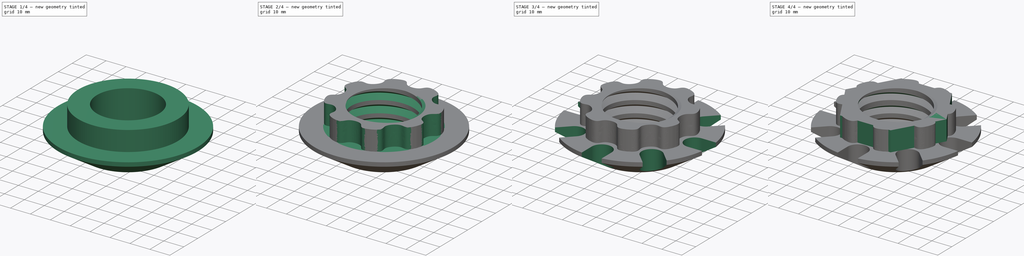
[diagram: build sequence overview — one tinted view per stage of 4, left to right]
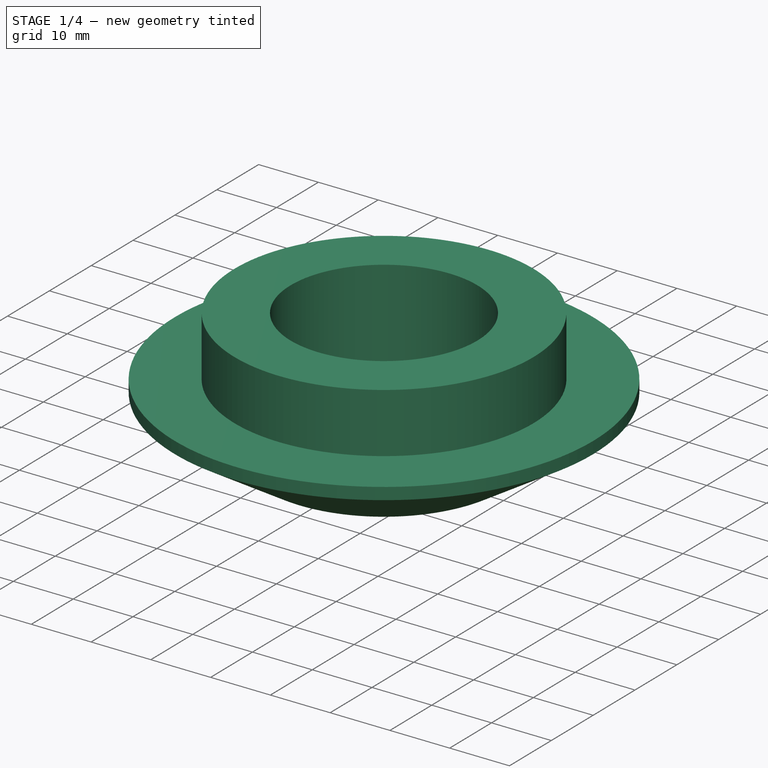
[diagram: stage 1 of 4 — iso view after this stage's code; geometry added in this stage tinted green]
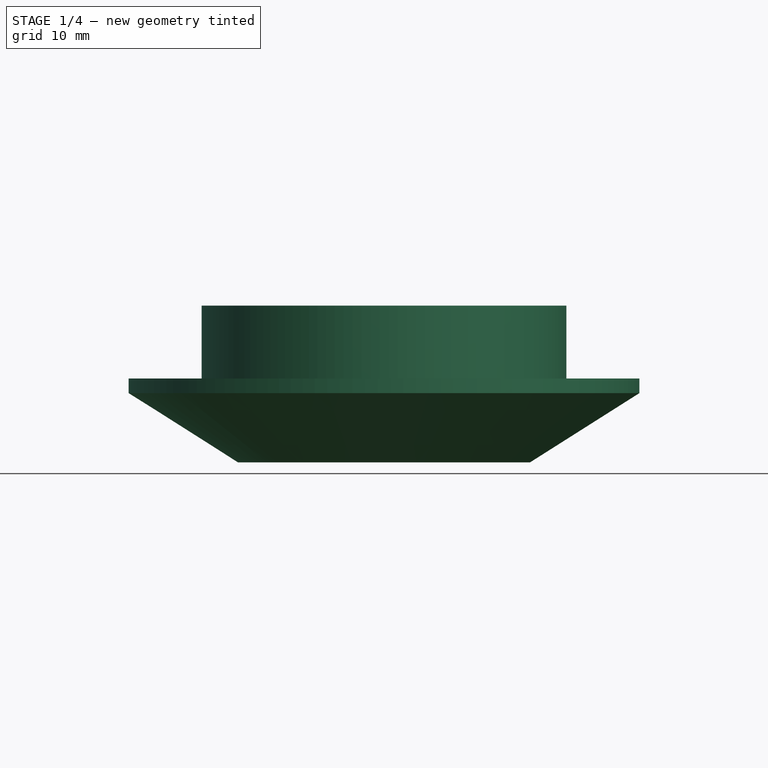
[diagram: stage 1 of 4 — front view after this stage's code; geometry added in this stage tinted green]
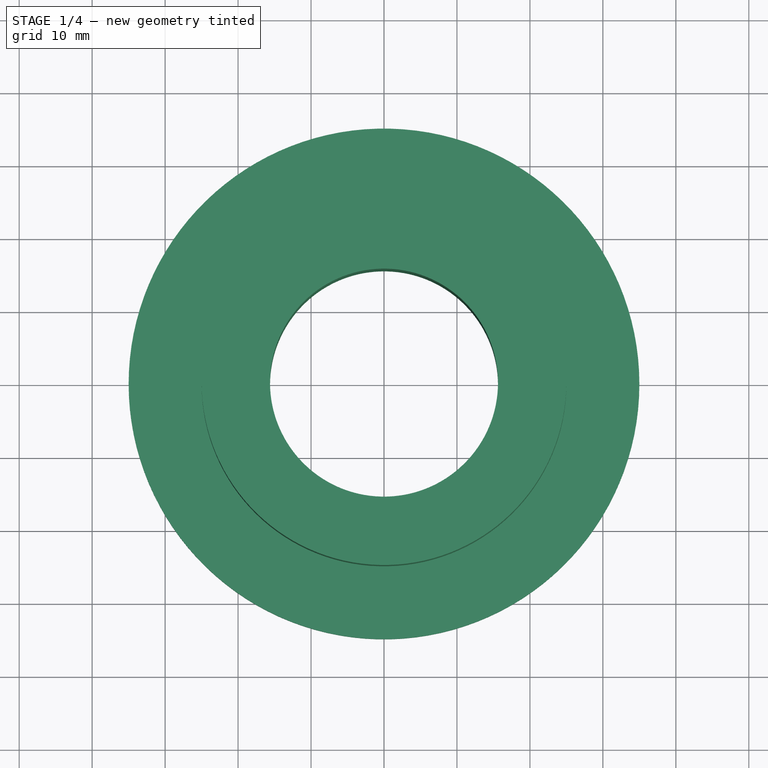
[diagram: stage 1 of 4 — top view after this stage's code; geometry added in this stage tinted green]
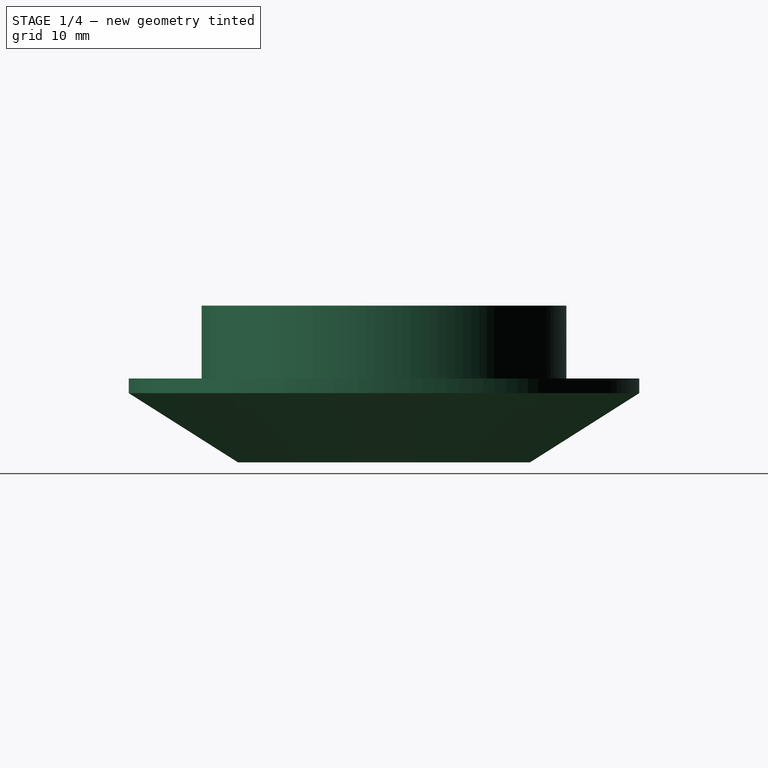
[diagram: stage 1 of 4 — right view after this stage's code; geometry added in this stage tinted green]
FCSTD DOCUMENT  (FreeCAD 0.20R27319 (Git))
Label: Filament Holder Nut
License: All rights reserved
LicenseURL: http://en.wikipedia.org/wiki/All_rights_reserved
objects: Sketcher::SketchObject×9, PartDesign::Pocket×4, PartDesign::Pad×2, PartDesign::SubtractiveHelix×2, PartDesign::Body×2, PartDesign::PolarPattern×2, PartDesign::Revolution×1
note: 31 computed .brp shape members not serialized (recipe doc carries the construction recipe); baked Part::Feature solids carry a one-line shape summary decoded from their .brp

FEATURE [PartDesign::Body] Body001  label="Test Nut"
  Group = -> [Sketch003,Pad,Sketch004,Pocket001,Sketch005,SubtractiveHelix]
  Origin = -> Origin001
  Tip = -> SubtractiveHelix
FEATURE [Sketcher::SketchObject] Sketch006  label="Grip Body Profile"
  FullyConstrained = true
  MapMode = 5
  Support = -> [XY_Plane002]
  sketch-geometry (1):
    g0: Circle CenterX=0 CenterY=0 CenterZ=0 NormalX=0 NormalY=0 NormalZ=1 AngleXU=0 Radius=25
  constraints (2):
    c: Coincident(g0,g-1)
    c: Diameter(g0) = 50
FEATURE [Sketcher::SketchObject] Sketch007  label="Centre Hole OUtline"
  FullyConstrained = true
  MapMode = 5
  Placement = pos=(0,0,10) rot=(0,0,1;0rad)
  sketch-geometry (1):
    g0: Circle CenterX=0 CenterY=0 CenterZ=0 NormalX=0 NormalY=0 NormalZ=1 AngleXU=0 Radius=15.625
  constraints (2):
    c: Coincident(g0,g-1)
    c: Diameter(g0) = 31.25
FEATURE [Sketcher::SketchObject] Sketch009  label="Body Profile (Nut)"
  FullyConstrained = true
  MapMode = 5
  Placement = pos=(0,0,0) rot=(1,0,0;1.5708rad)
  Support = -> [XZ_Plane002]
  sketch-geometry (5):
    g0: LineSegment StartX=0 StartY=0 StartZ=0 EndX=35 EndY=0 EndZ=0
    g1: LineSegment StartX=20 StartY=-11.5 StartZ=0 EndX=0 EndY=-11.5 EndZ=0
    g2: LineSegment StartX=0 StartY=-11.5 StartZ=0 EndX=0 EndY=0 EndZ=0
    g3: LineSegment StartX=35 StartY=0 StartZ=0 EndX=35 EndY=-2 EndZ=0
    g4: LineSegment StartX=20 StartY=-11.5 StartZ=0 EndX=35 EndY=-2 EndZ=0
  constraints (14):
    c: Coincident(g-1,g0)
    c: PointOnObject(g0,g-1)
    c: Horizontal(g1)
    c: Coincident(g1,g2)
    c: Coincident(g2,g0)
    c: Vertical(g2)
    c: Distance(g2) = 11.5
    c: Distance(g1) = 20
    c: Distance(g0) = 35
    c: Coincident(g0,g3)
    c: Vertical(g3)
    c: Coincident(g4,g1)
    c: Coincident(g4,g3)
    c: Distance(g3) = 2
FEATURE [Sketcher::SketchObject] Sketch008  label="Thread Profile (Nut)001"
  ExternalGeometry = -> [Sketch007,Sketch009]
  FullyConstrained = true
  MapMode = 5
  Placement = pos=(0,0,0) rot=(1,0,0;1.5708rad)
  Support = -> [XZ_Plane002]
  sketch-geometry (3):
    g0: LineSegment StartX=15.625 StartY=-11.5 StartZ=0 EndX=15.625 EndY=-15.5 EndZ=0
    g1: LineSegment StartX=15.625 StartY=-15.5 StartZ=0 EndX=18.625 EndY=-13.5 EndZ=0
    g2: LineSegment StartX=18.625 StartY=-13.5 StartZ=0 EndX=15.625 EndY=-11.5 EndZ=0
  constraints (10):
    c: Vertical(g0)
    c: Coincident(g0,g1)
    c: Coincident(g1,g2)
    c: Coincident(g2,g0)
    c: Distance(g0) = 4
    c: DistanceX(g0,g1) = 3
    c: Equal(g2,g1)
    c: Vertical(g0,g-3)
    c: DistanceX(g-1,g0) = 15.625
    c: Horizontal(g0,g-4)
FEATURE [PartDesign::Revolution] Revolution001  label="Body (Nut)"
  Angle = 360
  Axis = (0,-2e-16,1)
  Base = (0,0,0)
  Placement = pos=(0,0,0) rot=(1,0,0;1.5708rad)
  Profile = -> Sketch009
  ReferenceAxis = -> Sketch009 [V_Axis]
FEATURE [PartDesign::Pad] Pad001  label="Grip Body"
  BaseFeature = -> Revolution001
  Direction = (0,0,1)
  Length = 10
  Length2 = 10
  Placement = pos=(0,0,0) rot=(1,0,0;1.5708rad)
  Profile = -> Sketch006
  ReferenceAxis = -> Sketch006 [N_Axis]
  Type = 0
FEATURE [PartDesign::Pocket] Pocket002  label="Centre Hole"
  BaseFeature = -> Pad001
  Direction = (0,0,-1)
  Length = 5
  Length2 = 5
  Placement = pos=(0,0,0) rot=(1,0,0;1.5708rad)
  Profile = -> Sketch007
  ReferenceAxis = -> Sketch007 [N_Axis]
  Type = 1
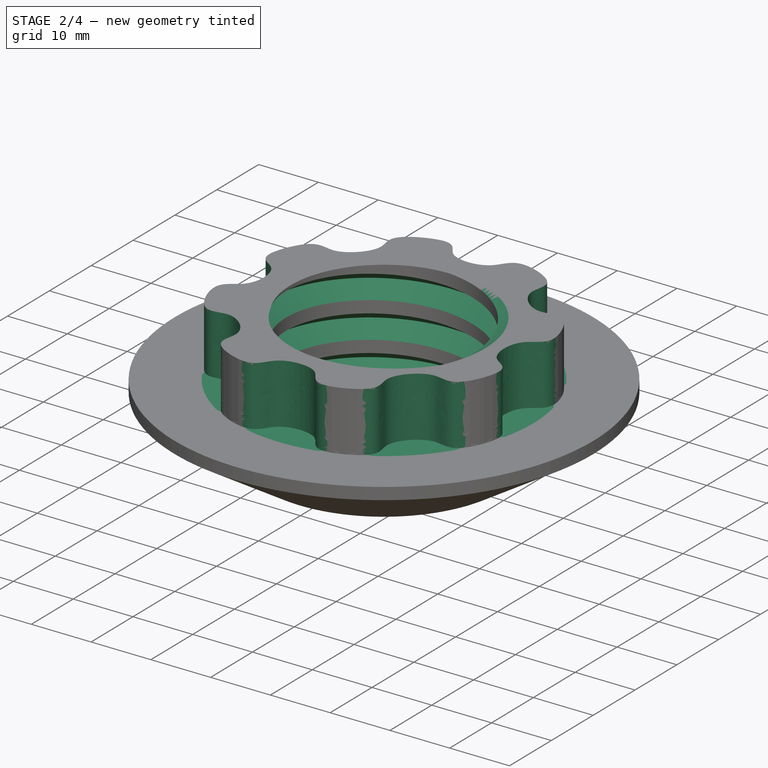
[diagram: stage 2 of 4 — iso view after this stage's code; geometry added in this stage tinted green]
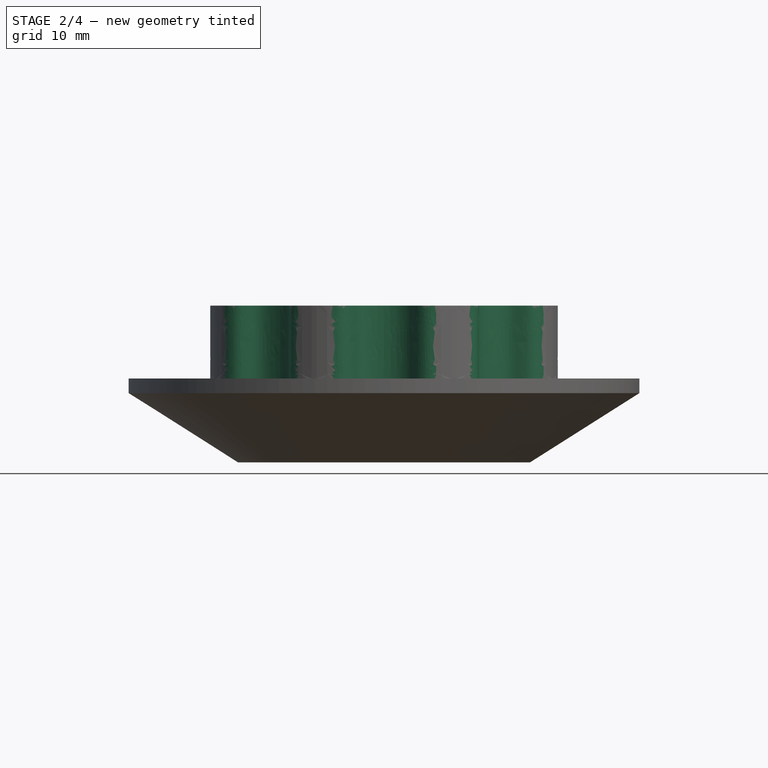
[diagram: stage 2 of 4 — front view after this stage's code; geometry added in this stage tinted green]
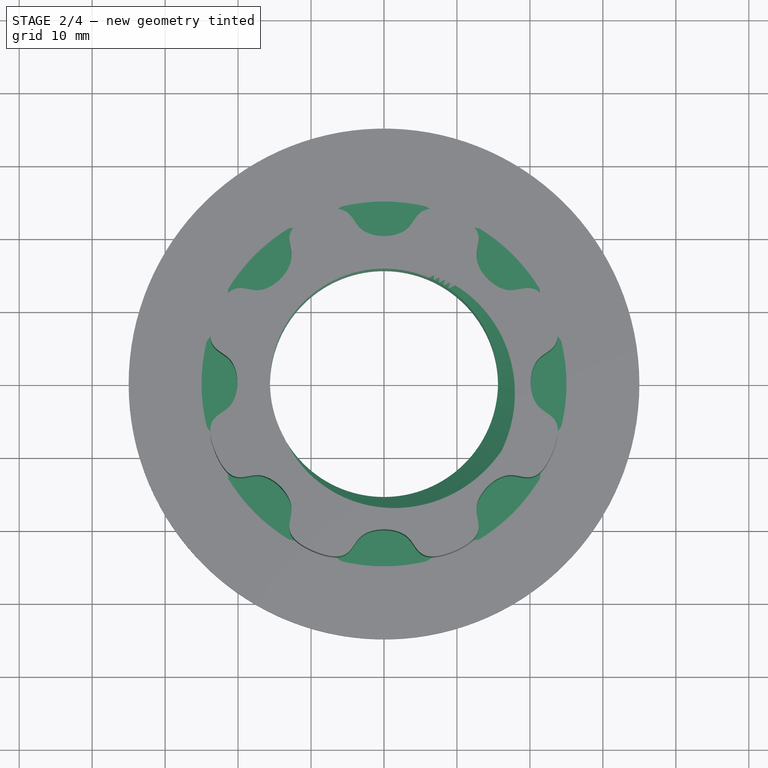
[diagram: stage 2 of 4 — top view after this stage's code; geometry added in this stage tinted green]
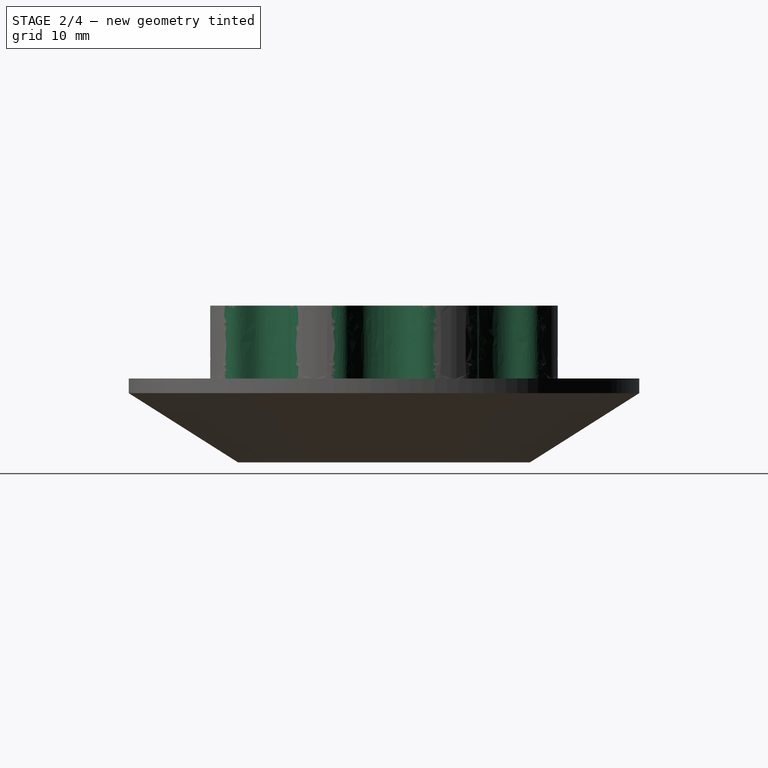
[diagram: stage 2 of 4 — right view after this stage's code; geometry added in this stage tinted green]
FEATURE [Sketcher::SketchObject] Sketch011  label="Grip Cutout Profile"
  ExternalGeometry = -> [Pocket002]
  FullyConstrained = false
  MapMode = 5
  Placement = pos=(0,2.2e-15,10) rot=(0,0,1;3.14159rad)
  Support = -> [Pocket002]
  sketch-geometry (12):
    g0: ArcOfCircle CenterX=0 CenterY=20.7263 CenterZ=0 NormalX=0 NormalY=0 NormalZ=1 AngleXU=0 Radius=9.5409 StartAngle=0.267118 EndAngle=2.87447
    g1-g6: Circle x6 (B-spline internal-alignment scaffolding for g7; pole/knot coordinates omitted)
    g7: BSplineCurve PolesCount=6 KnotsCount=4 Degree=3 IsPeriodic=0
    g8-g11: GeomPoint x4 (B-spline internal-alignment scaffolding for g7; pole/knot coordinates omitted)
  constraints (11):
    c: PointOnObject(g0,g-2)
    c: PointOnObject(g0,g-3)
    c: PointOnObject(g0,g-3)
    c: Coincident(g7,g0)
    c: Weight(g1) = 1
    c: Equal(g1, g2-g6) x5
    c: Coincident(g7,g0)
    c: InternalAlignment(g1-g6 -> g7) x6
    c: InternalAlignment(g8-g11 -> g7) x4
    c: Symmetric(g3,g4,g-2)
    c: Symmetric(g2,g5,g-2)
FEATURE [PartDesign::Pocket] Pocket003  label="Grip Cutout"
  BaseFeature = -> Pocket002
  Direction = (0,-2e-16,-1)
  Length = 10
  Length2 = 5
  Placement = pos=(0,0,0) rot=(1,0,0;1.5708rad)
  Profile = -> Sketch011
  ReferenceAxis = -> Sketch011 [N_Axis]
  Type = 0
FEATURE [PartDesign::PolarPattern] PolarPattern002  label="Grip Cutout Polar"
  Angle = 360
  Axis = -> Sketch011 [N_Axis]
  BaseFeature = -> Pocket003
  Occurrences = 8
  Originals = -> [Pocket003]
  Overlap = 0
  Placement = pos=(0,0,0) rot=(1,0,0;1.5708rad)
FEATURE [PartDesign::SubtractiveHelix] SubtractiveHelix001  label="Thread (Nut)001"
  Angle = 0
  Axis = (0,-2e-16,1)
  Base = (0,0,0)
  BaseFeature = -> PolarPattern002
  Growth = 0
  HasBeenEdited = true
  Height = 60
  LeftHanded = false
  Mode = 0
  Outside = false
  Pitch = 6
  Placement = pos=(0,0,0) rot=(1,0,0;1.5708rad)
  Profile = -> Sketch008
  ReferenceAxis = -> Sketch008 [V_Axis]
  Turns = 10
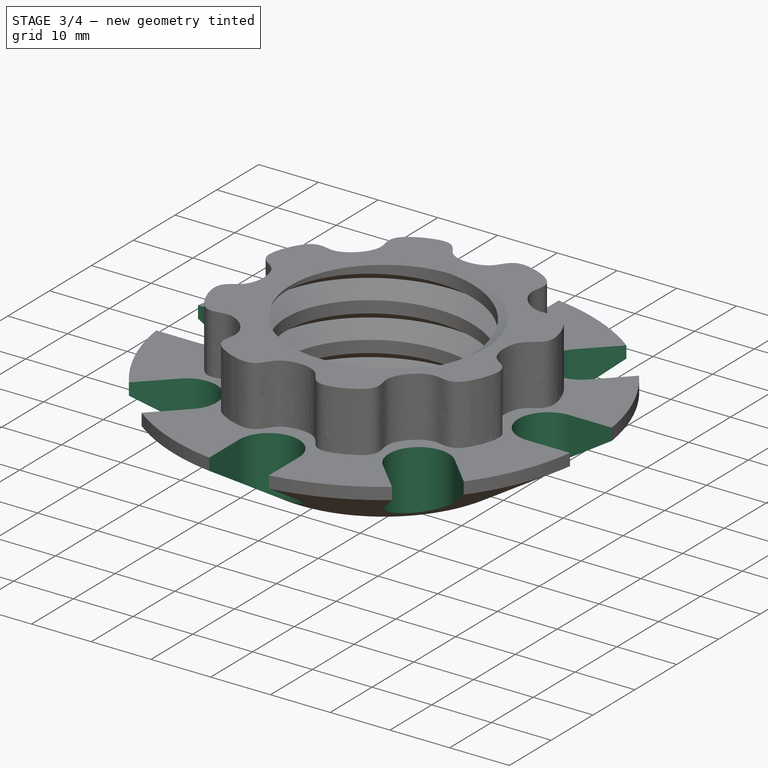
[diagram: stage 3 of 4 — iso view after this stage's code; geometry added in this stage tinted green]
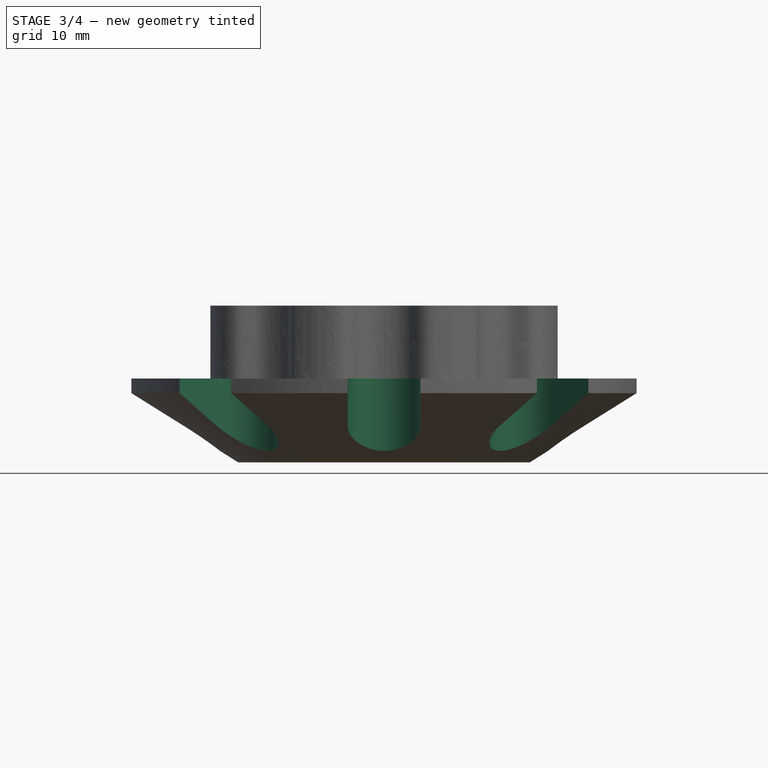
[diagram: stage 3 of 4 — front view after this stage's code; geometry added in this stage tinted green]
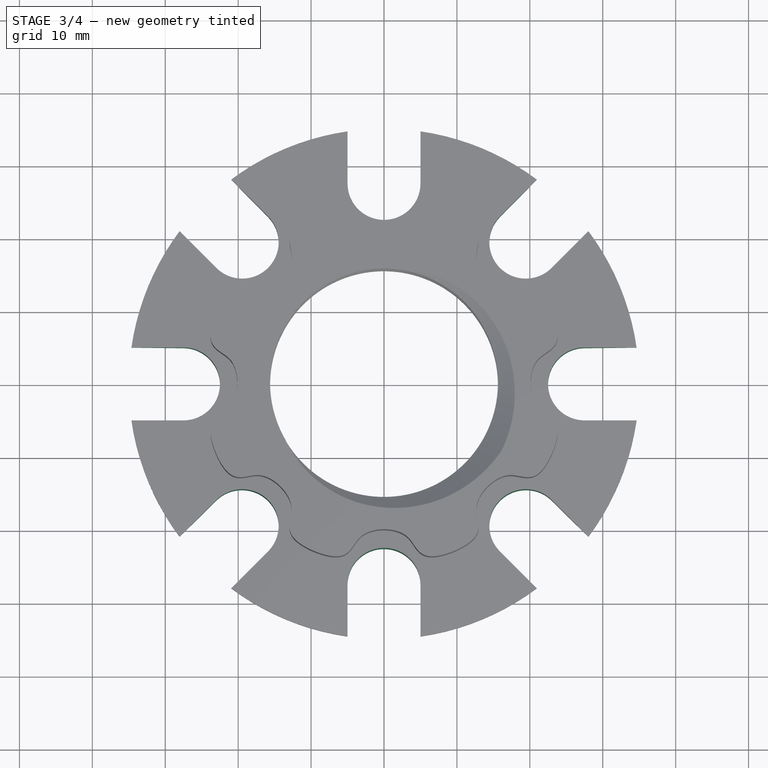
[diagram: stage 3 of 4 — top view after this stage's code; geometry added in this stage tinted green]
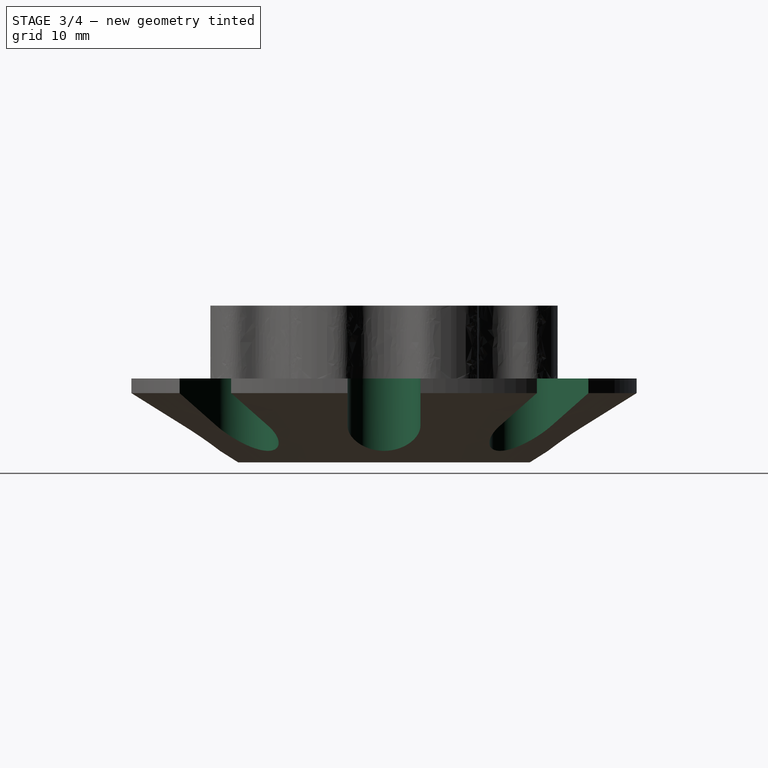
[diagram: stage 3 of 4 — right view after this stage's code; geometry added in this stage tinted green]
FEATURE [Sketcher::SketchObject] Sketch012
  ExternalGeometry = -> [Revolution001]
  FullyConstrained = false
  MapMode = 5
  Placement = pos=(0,0,0) rot=(0,0,1;3.14159rad)
  Support = -> [SubtractiveHelix001]
  sketch-geometry (5):
    g0: LineSegment StartX=-5 StartY=41.518 StartZ=0 EndX=5 EndY=41.518 EndZ=0
    g1: LineSegment StartX=5 StartY=41.518 StartZ=0 EndX=5 EndY=27.5 EndZ=0
    g2: ArcOfCircle CenterX=0 CenterY=27.5 CenterZ=0 NormalX=0 NormalY=0 NormalZ=1 AngleXU=0 Radius=5 StartAngle=3.14159 EndAngle=6.28319
    g3: LineSegment StartX=-5 StartY=27.5 StartZ=0 EndX=-5 EndY=41.518 EndZ=0
    g4: GeomPoint X=0 Y=35 Z=0
  constraints (12):
    c: Coincident(g0,g1)
    c: Vertical(g1)
    c: Tangent(g1,g2) = 1.5708
    c: Coincident(g2,g3)
    c: Coincident(g3,g0)
    c: Vertical(g3)
    c: PointOnObject(g2,g-2)
    c: Symmetric(g0,g0,g-2)
    c: Diameter(g2) = 10
    c: PointOnObject(g4,g-3)
    c: PointOnObject(g4,g-2)
    c: DistanceY(g2,g4) = 7.5
FEATURE [PartDesign::Pocket] Pocket004
  BaseFeature = -> SubtractiveHelix001
  Direction = (0,-4e-16,-1)
  Length = 5
  Length2 = 5
  Placement = pos=(0,0,0) rot=(1,0,0;1.5708rad)
  Profile = -> Sketch012
  ReferenceAxis = -> Sketch012 [N_Axis]
  Type = 1
FEATURE [PartDesign::PolarPattern] PolarPattern003
  Angle = 360
  Axis = -> Sketch012 [N_Axis]
  BaseFeature = -> Pocket004
  Occurrences = 8
  Originals = -> [Pocket004]
  Overlap = 0
  Placement = pos=(0,0,0) rot=(1,0,0;1.5708rad)
FEATURE [PartDesign::Body] Body002  label="Conical Nut"
  Group = -> [Revolution001,Sketch012,Pad001,Sketch009,Sketch006,Sketch007,Pocket002,Pocket003,PolarPattern002,Sketch011,Sketch008,SubtractiveHelix001,Pocket004,PolarPattern003]
  Origin = -> Origin002
  Tip = -> PolarPattern003
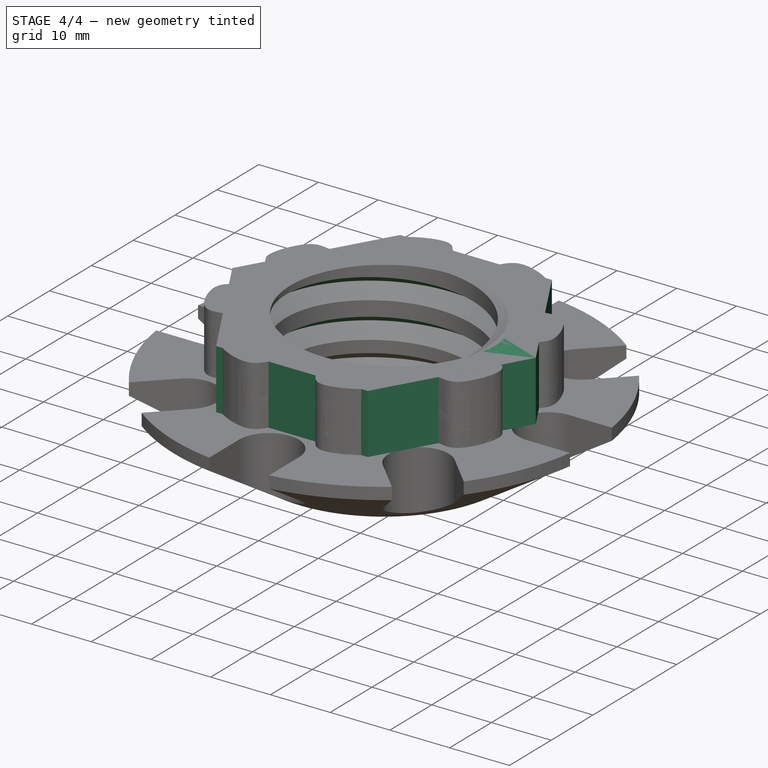
[diagram: stage 4 of 4 — iso view after this stage's code; geometry added in this stage tinted green]
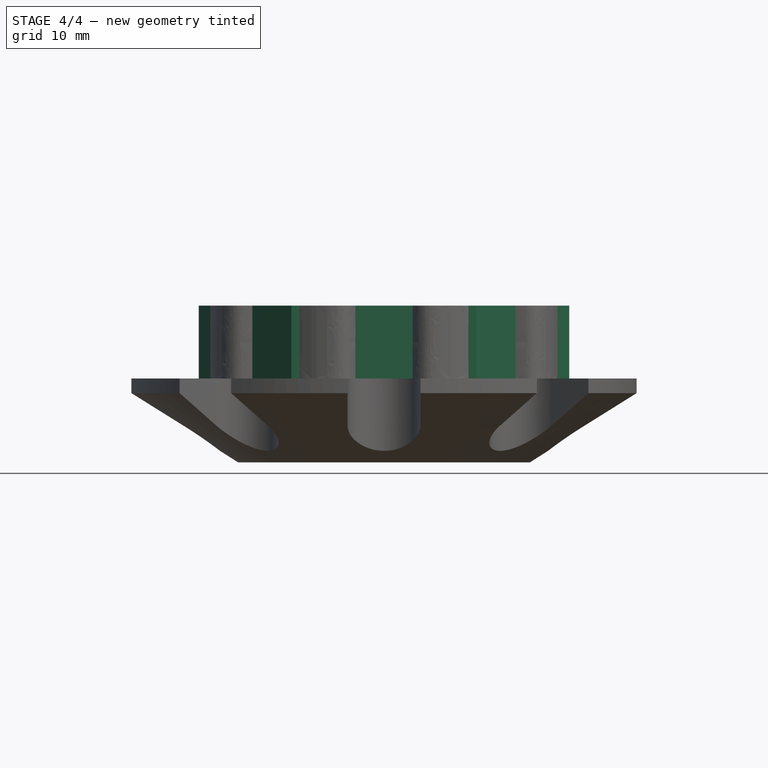
[diagram: stage 4 of 4 — front view after this stage's code; geometry added in this stage tinted green]
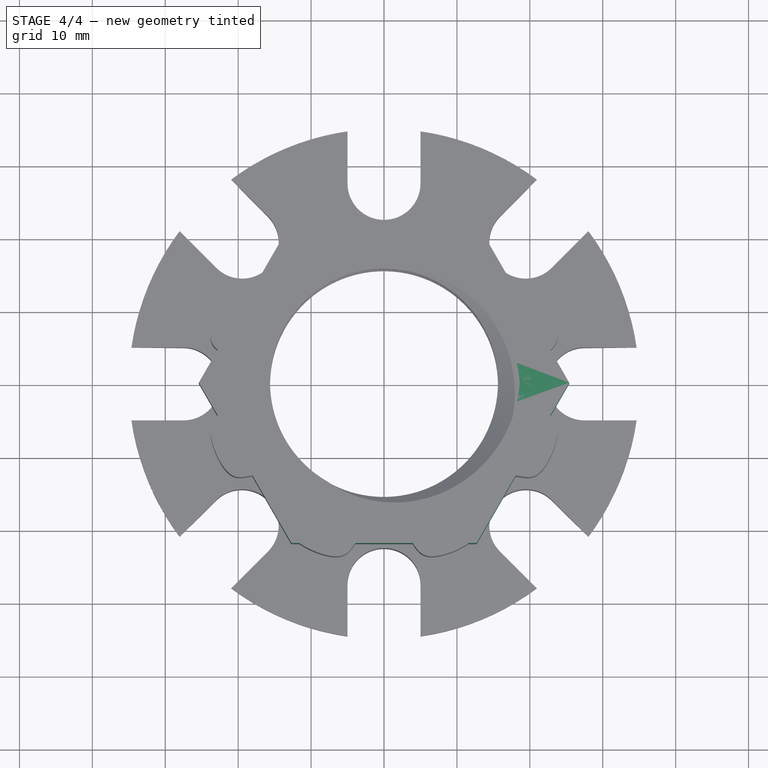
[diagram: stage 4 of 4 — top view after this stage's code; geometry added in this stage tinted green]
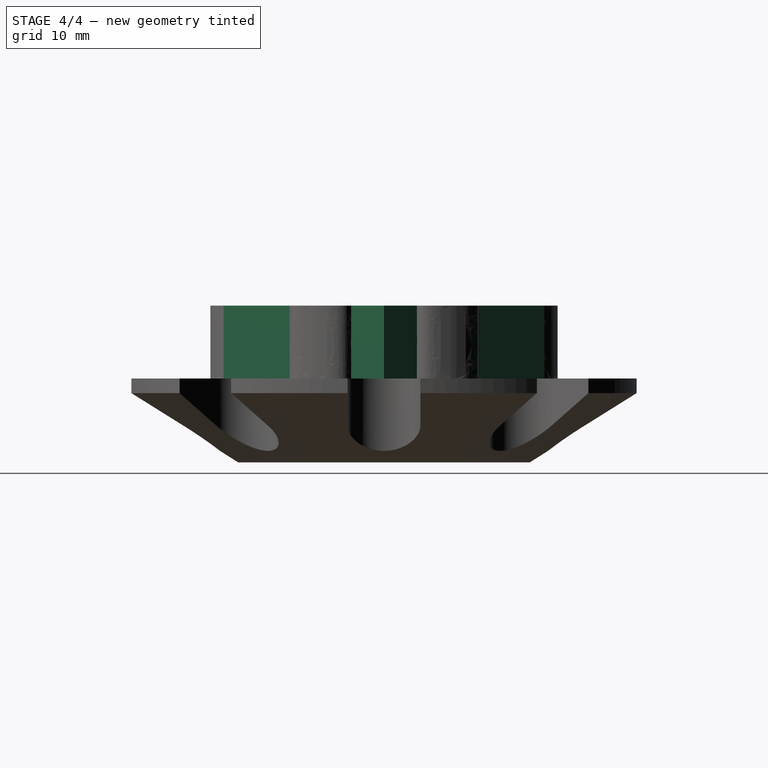
[diagram: stage 4 of 4 — right view after this stage's code; geometry added in this stage tinted green]
FEATURE [Sketcher::SketchObject] Sketch003  label="Nut Outline"
  FullyConstrained = true
  MapMode = 5
  Support = -> [XY_Plane001]
  sketch-geometry (7):
    g0: LineSegment StartX=12.7017 StartY=-22 StartZ=0 EndX=25.4034 EndY=3.6e-15 EndZ=0
    g1: LineSegment StartX=25.4034 StartY=3.6e-15 StartZ=0 EndX=12.7017 EndY=22 EndZ=0
    g2: LineSegment StartX=12.7017 StartY=22 StartZ=0 EndX=-12.7017 EndY=22 EndZ=0
    g3: LineSegment StartX=-12.7017 StartY=22 StartZ=0 EndX=-25.4034 EndY=0 EndZ=0
    g4: LineSegment StartX=-25.4034 StartY=1.6e-15 StartZ=0 EndX=-12.7017 EndY=-22 EndZ=0
    g5: LineSegment StartX=-12.7017 StartY=-22 StartZ=0 EndX=12.7017 EndY=-22 EndZ=0
    g6: Circle CenterX=0 CenterY=0 CenterZ=0 NormalX=0 NormalY=0 NormalZ=1 AngleXU=0 Radius=25.4034
  constraints (16):
    c: Coincident(g0,g1)
    c: Coincident(g1,g2)
    c: Coincident(g2,g3)
    c: Coincident(g3,g4)
    c: Coincident(g4,g5)
    c: Coincident(g5,g0)
    c: Equal(g0, g1-g5) x5
    c: PointOnObject(g0,g6)
    c: PointOnObject(g1,g6)
    c: PointOnObject(g2,g6)
    c: PointOnObject(g3,g6)
    c: PointOnObject(g4,g6)
    c: PointOnObject(g5,g6)
    c: Coincident(g6,g-1)
    c: Horizontal(g2)
    c: DistanceY(g0,g1) = 44
FEATURE [PartDesign::Pad] Pad  label="Nut Body"
  Direction = (0,0,1)
  Length = 10
  Length2 = 10
  Profile = -> Sketch003
  ReferenceAxis = -> Sketch003 [N_Axis]
  Type = 0
FEATURE [Sketcher::SketchObject] Sketch004  label="Hole outline"
  FullyConstrained = true
  MapMode = 5
  Placement = pos=(0,0,10) rot=(0,0,1;0rad)
  Support = -> [Pad]
  sketch-geometry (1):
    g0: Circle CenterX=0 CenterY=0 CenterZ=0 NormalX=0 NormalY=0 NormalZ=1 AngleXU=0 Radius=15.625
  constraints (2):
    c: Coincident(g0,g-1)
    c: Diameter(g0) = 31.25
FEATURE [PartDesign::Pocket] Pocket001  label="Hole"
  BaseFeature = -> Pad
  Direction = (0,0,-1)
  Length = 5
  Length2 = 5
  Profile = -> Sketch004
  ReferenceAxis = -> Sketch004 [N_Axis]
  Type = 1
FEATURE [Sketcher::SketchObject] Sketch005  label="Thread Profile (Nut)"
  ExternalGeometry = -> [Sketch004]
  FullyConstrained = true
  MapMode = 5
  Placement = pos=(0,0,0) rot=(1,0,0;1.5708rad)
  Support = -> [XZ_Plane001]
  sketch-geometry (3):
    g0: LineSegment StartX=15.625 StartY=0 StartZ=0 EndX=15.625 EndY=-4 EndZ=0
    g1: LineSegment StartX=15.625 StartY=-4 StartZ=0 EndX=18.625 EndY=-2 EndZ=0
    g2: LineSegment StartX=18.625 StartY=-2 StartZ=0 EndX=15.625 EndY=0 EndZ=0
  constraints (10):
    c: Vertical(g0)
    c: Coincident(g0,g1)
    c: Coincident(g1,g2)
    c: Coincident(g2,g0)
    c: Distance(g0) = 4
    c: DistanceX(g0,g1) = 3
    c: Equal(g2,g1)
    c: DistanceY(g-1,g0) = 0
    c: Vertical(g0,g-3)
    c: DistanceX(g-1,g0) = 15.625
FEATURE [PartDesign::SubtractiveHelix] SubtractiveHelix  label="Thread (Nut)"
  Angle = 0
  Axis = (0,-2e-16,1)
  Base = (0,0,0)
  BaseFeature = -> Pocket001
  Growth = 0
  HasBeenEdited = true
  Height = 20
  LeftHanded = false
  Mode = 0
  Outside = false
  Pitch = 6
  Profile = -> Sketch005
  ReferenceAxis = -> Sketch005 [V_Axis]
  Turns = 3.33333
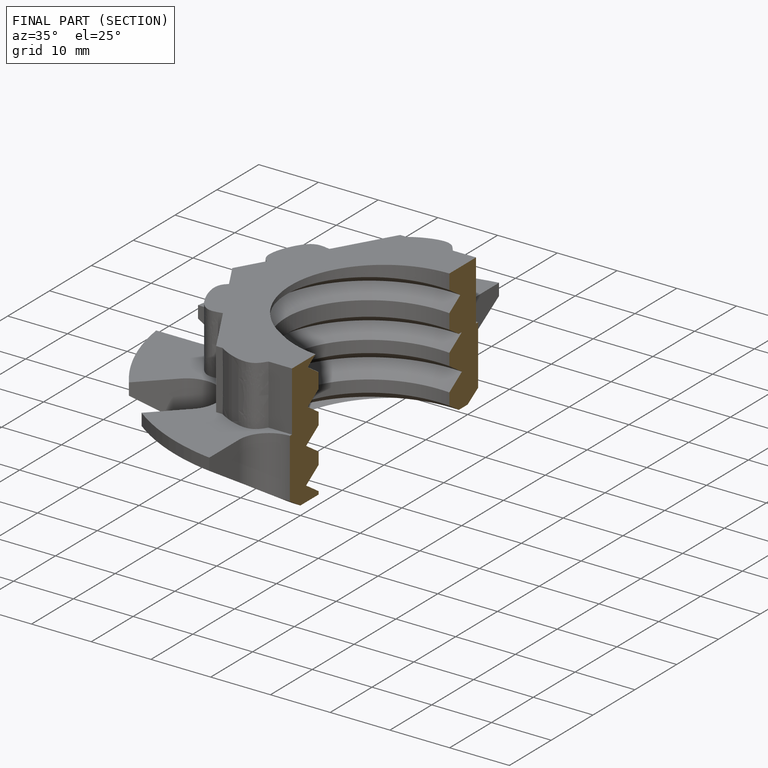
[diagram: finished part — half-section view (interior)]
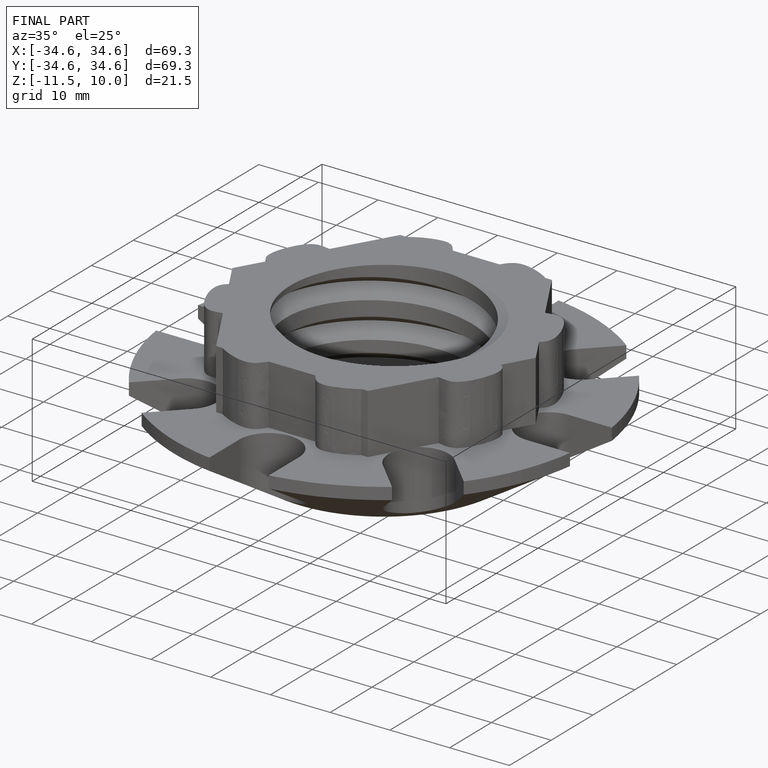
[diagram: finished part — iso view with bounding-box wireframe]
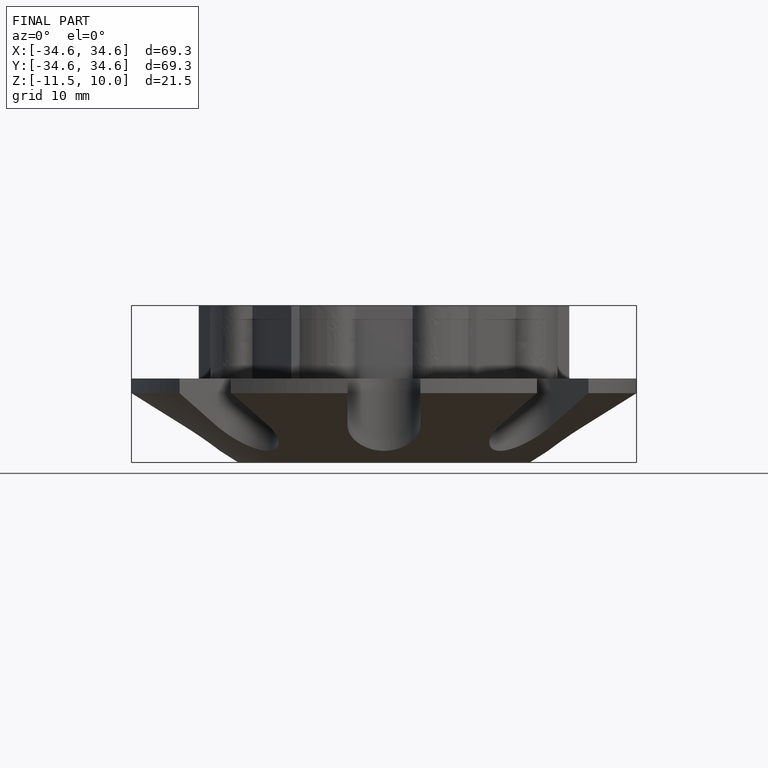
[diagram: finished part — front view with bounding-box wireframe]
